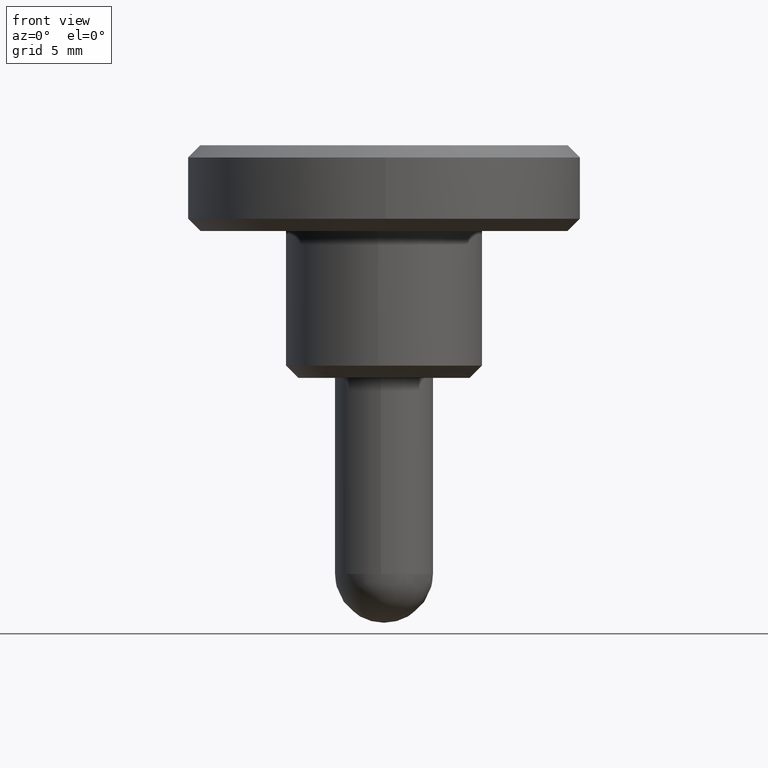
[diagram: clean part render]
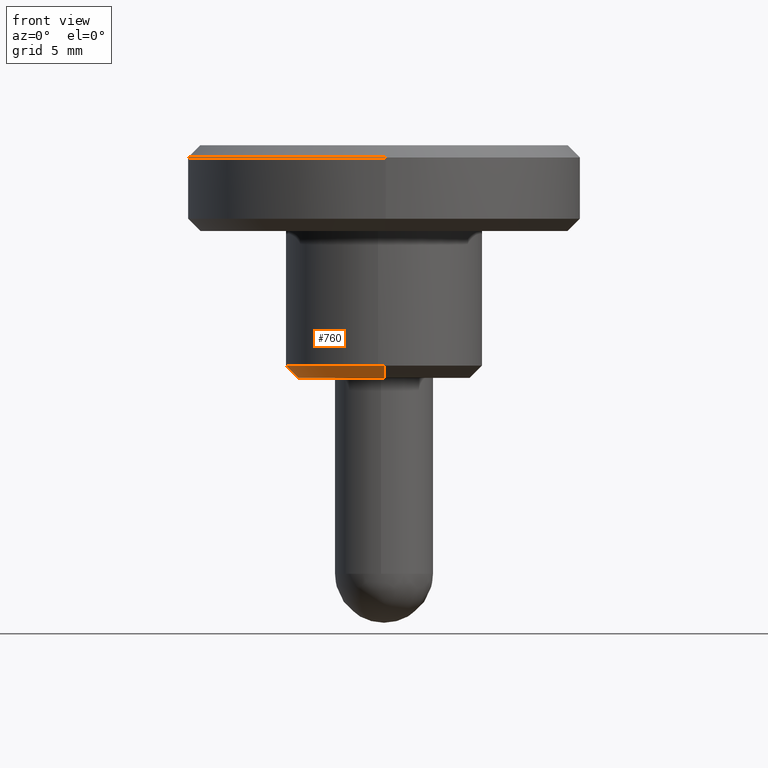
[diagram: same view with one face highlighted and labeled with its STEP entity id]
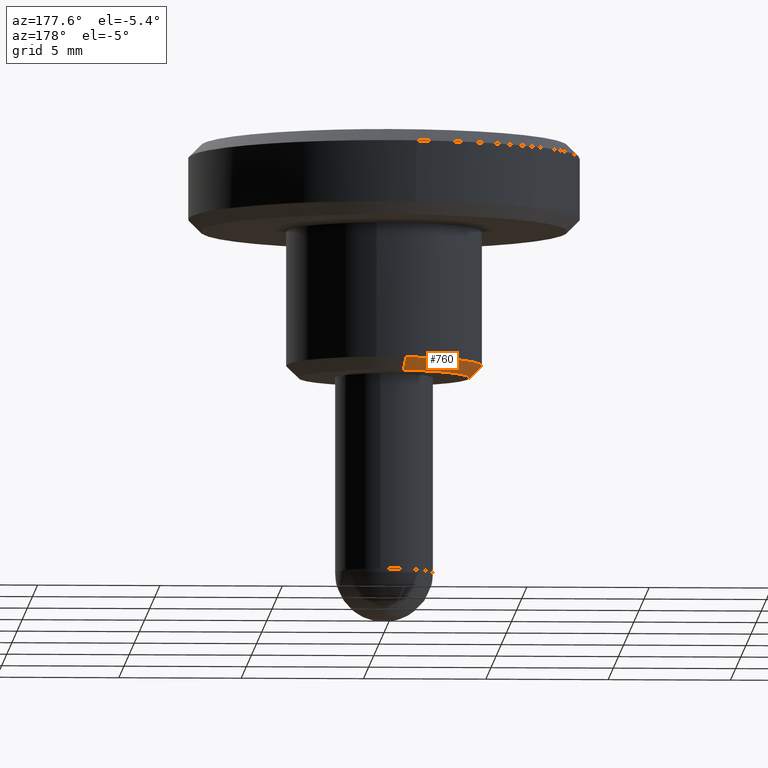
[diagram: same view with one face highlighted and labeled with its STEP entity id]
A machine part, front view. The second image highlights one B-rep face of the part: STEP entity #760.
A second angle (auxiliary view) of the same face is appended — the face is thin or edge-on in the first view.
In plain terms, the highlighted face is a freeform B-spline surface patch.
Its self-contained STEP definition (entity closure, byte-faithful):
#647=CARTESIAN_POINT('',(-0.638643656009242,3.428525999702869,-0.012499999999999));
#648=CARTESIAN_POINT('',(-3.512880776151094,2.893131692410479,-0.012499999999999));
#649=CARTESIAN_POINT('',(-3.487367206686213,-0.030433792550578,-0.012499999999999));
#650=CARTESIAN_POINT('',(-3.456933414135635,-3.517800999236791,-0.012499999999999));
#651=CARTESIAN_POINT('',(0.030433792550578,-3.487367206686213,-0.012499999999999));
#652=CARTESIAN_POINT('',(-0.734840787348988,3.944955408797910,0.512812499999944));
#653=CARTESIAN_POINT('',(-4.042016312415441,3.328916134609593,0.512812499999944));
#654=CARTESIAN_POINT('',(-4.012659704395859,-0.035017950729568,0.512812499999944));
#655=CARTESIAN_POINT('',(-3.977641753666292,-4.047677655125426,0.512812499999944));
#656=CARTESIAN_POINT('',(0.035017950729568,-4.012659704395859,0.512812499999944));
#664=(BOUNDED_SURFACE()B_SPLINE_SURFACE(2,1,((#647,#652),(#648,#653),(#649,#654),(#650,#655),(#651,#656)),.UNSPECIFIED.,.F.,.F.,.U.)B_SPLINE_SURFACE_WITH_KNOTS((3,2,3),(2,2),(0.0,5.850807989876079,12.499453432917081),(0.0,1.0),.UNSPECIFIED.)GEOMETRIC_REPRESENTATION_ITEM()RATIONAL_B_SPLINE_SURFACE(((0.938140952186599,0.938140952186599),(0.742253967444162,0.742253967444162),(1.0,1.0),(0.707106781186548,0.707106781186548),(1.0,1.0)))REPRESENTATION_ITEM('')SURFACE());
#665=CARTESIAN_POINT('',(-0.732494484874875,3.932359535827230,0.499999961172962));
#666=VERTEX_POINT('',#665);
#667=CARTESIAN_POINT('',(-3.999999999999915,0.0,0.499999999999945));
#668=VERTEX_POINT('',#667);
#669=CARTESIAN_POINT('',(-0.732494484874875,3.932359535827230,0.499999961172962));
#670=CARTESIAN_POINT('',(-3.999999999999915,3.323709815139511,0.499999999999945));
#671=CARTESIAN_POINT('',(-3.999999999999915,0.0,0.499999999999945));
#679=(BOUNDED_CURVE()B_SPLINE_CURVE(2,(#669,#670,#671),.UNSPECIFIED.,.F.,.U.)B_SPLINE_CURVE_WITH_KNOTS((3,3),(0.281445261705507,0.500000000000000),.UNSPECIFIED.)CURVE()GEOMETRIC_REPRESENTATION_ITEM()RATIONAL_B_SPLINE_CURVE((0.935586820757659,0.743947196855977,1.0))REPRESENTATION_ITEM(''));
#680=EDGE_CURVE('',#666,#668,#679,.T.);
#681=ORIENTED_EDGE('',*,*,#680,.F.);
#682=CARTESIAN_POINT('',(-0.640932701404375,3.440814623355585,3.962922E-012));
#683=VERTEX_POINT('',#682);
#684=CARTESIAN_POINT('',(-0.640932701404375,3.440814623355585,3.962922E-012));
#685=CARTESIAN_POINT('',(-0.732494484874875,3.932359535827230,0.499999961172962));
#686=QUASI_UNIFORM_CURVE('',1,(#684,#685),.UNSPECIFIED.,.F.,.U.);
#687=EDGE_CURVE('',#683,#666,#686,.T.);
#688=ORIENTED_EDGE('',*,*,#687,.F.);
#689=CARTESIAN_POINT('',(-3.499999999999915,0.0,0.0));
#690=VERTEX_POINT('',#689);
#691=CARTESIAN_POINT('',(-3.499999999999915,0.0,0.0));
#692=CARTESIAN_POINT('',(-3.499999999999915,2.908246052280306,0.0));
#693=CARTESIAN_POINT('',(-0.640932701404375,3.440814623355586,3.962922E-012));
#701=(BOUNDED_CURVE()B_SPLINE_CURVE(2,(#691,#692,#693),.UNSPECIFIED.,.F.,.U.)B_SPLINE_CURVE_WITH_KNOTS((3,3),(0.500000000000000,0.718554736283676),.UNSPECIFIED.)CURVE()GEOMETRIC_REPRESENTATION_ITEM()RATIONAL_B_SPLINE_CURVE((1.0,0.743947199211796,0.935586817231292))REPRESENTATION_ITEM(''));
#702=EDGE_CURVE('',#690,#683,#701,.T.);
#703=ORIENTED_EDGE('',*,*,#702,.F.);
#704=CARTESIAN_POINT('',(0.030542874245986,-3.499866730724728,2.274647E-013));
#705=VERTEX_POINT('',#704);
#706=CARTESIAN_POINT('',(0.030542874245986,-3.499866730724728,2.274647E-013));
#707=CARTESIAN_POINT('',(0.015271727874132,-3.499999999999916,0.0));
#708=CARTESIAN_POINT('',(0.0,-3.499999999999915,0.0));
#709=CARTESIAN_POINT('',(-3.499999999999915,-3.499999999999915,0.0));
#710=CARTESIAN_POINT('',(-3.499999999999915,0.0,0.0));
#718=(BOUNDED_CURVE()B_SPLINE_CURVE(2,(#706,#707,#708,#709,#710),.UNSPECIFIED.,.F.,.U.)B_SPLINE_CURVE_WITH_KNOTS((3,2,3),(0.248460105664844,0.250000000000000,0.500000000000000),.UNSPECIFIED.)CURVE()GEOMETRIC_REPRESENTATION_ITEM()RATIONAL_B_SPLINE_CURVE((0.996414028100015,0.998195901566174,1.0,0.707106781186547,1.0))REPRESENTATION_ITEM(''));
#719=EDGE_CURVE('',#705,#690,#718,.T.);
#720=ORIENTED_EDGE('',*,*,#719,.F.);
#721=CARTESIAN_POINT('',(0.034906143496061,-3.999847692853440,0.500000000609875));
#722=VERTEX_POINT('',#721);
#723=CARTESIAN_POINT('',(0.030542874245986,-3.499866730724728,2.274647E-013));
#724=CARTESIAN_POINT('',(0.034906143496061,-3.999847692853440,0.500000000609875));
#725=QUASI_UNIFORM_CURVE('',1,(#723,#724),.UNSPECIFIED.,.F.,.U.);
#726=EDGE_CURVE('',#705,#722,#725,.T.);
#727=ORIENTED_EDGE('',*,*,#726,.T.);
#728=CARTESIAN_POINT('',(-0.244190999814815,-3.992539386856283,0.499999999999933));
#729=VERTEX_POINT('',#728);
#730=CARTESIAN_POINT('',(-0.244190999814815,-3.992539386856283,0.499999999999933));
#731=CARTESIAN_POINT('',(-0.122209469604327,-3.999999999999915,0.499999999999945));
#732=CARTESIAN_POINT('',(0.0,-3.999999999999915,0.499999999999945));
#733=CARTESIAN_POINT('',(0.017453404780123,-3.999999999999915,0.499999999999945));
#734=CARTESIAN_POINT('',(0.034906143496061,-3.999847692853440,0.500000000609875));
#742=(BOUNDED_CURVE()B_SPLINE_CURVE(2,(#730,#731,#732,#733,#734),.UNSPECIFIED.,.F.,.U.)B_SPLINE_CURVE_WITH_KNOTS((3,2,3),(0.739333098736265,0.750000000000000,0.751539894466855),.UNSPECIFIED.)CURVE()GEOMETRIC_REPRESENTATION_ITEM()RATIONAL_B_SPLINE_CURVE((0.976072334206636,0.987502947816397,1.0,0.998195901411879,0.996414027795226))REPRESENTATION_ITEM(''));
#743=EDGE_CURVE('',#729,#722,#742,.T.);
#744=ORIENTED_EDGE('',*,*,#743,.F.);
#745=CARTESIAN_POINT('',(-3.999999999999915,0.0,0.499999999999945));
#746=CARTESIAN_POINT('',(-3.999999999999916,-3.762827249793105,0.499999999999945));
#747=CARTESIAN_POINT('',(-0.244190999814815,-3.992539386856283,0.499999999999933));
#755=(BOUNDED_CURVE()B_SPLINE_CURVE(2,(#745,#746,#747),.UNSPECIFIED.,.F.,.U.)B_SPLINE_CURVE_WITH_KNOTS((3,3),(0.500000000000000,0.739333098736265),.UNSPECIFIED.)CURVE()GEOMETRIC_REPRESENTATION_ITEM()RATIONAL_B_SPLINE_CURVE((1.0,0.719603833370150,0.976072334206636))REPRESENTATION_ITEM(''));
#756=EDGE_CURVE('',#668,#729,#755,.T.);
#757=ORIENTED_EDGE('',*,*,#756,.F.);
#758=EDGE_LOOP('',(#681,#688,#703,#720,#727,#744,#757));
#759=FACE_OUTER_BOUND('',#758,.T.);
#760=ADVANCED_FACE('',(#759),#664,.T.);